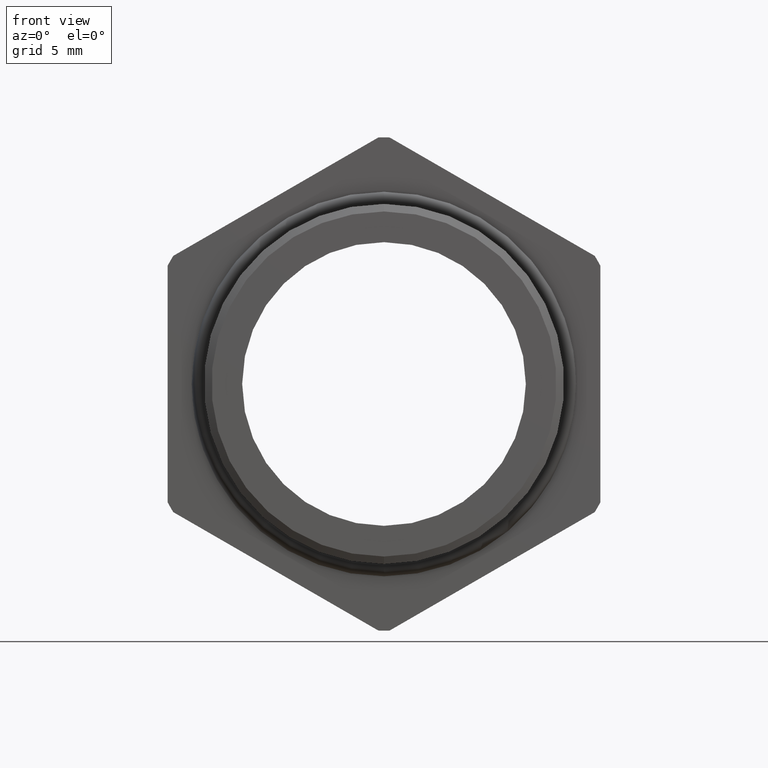
[diagram: clean part render]
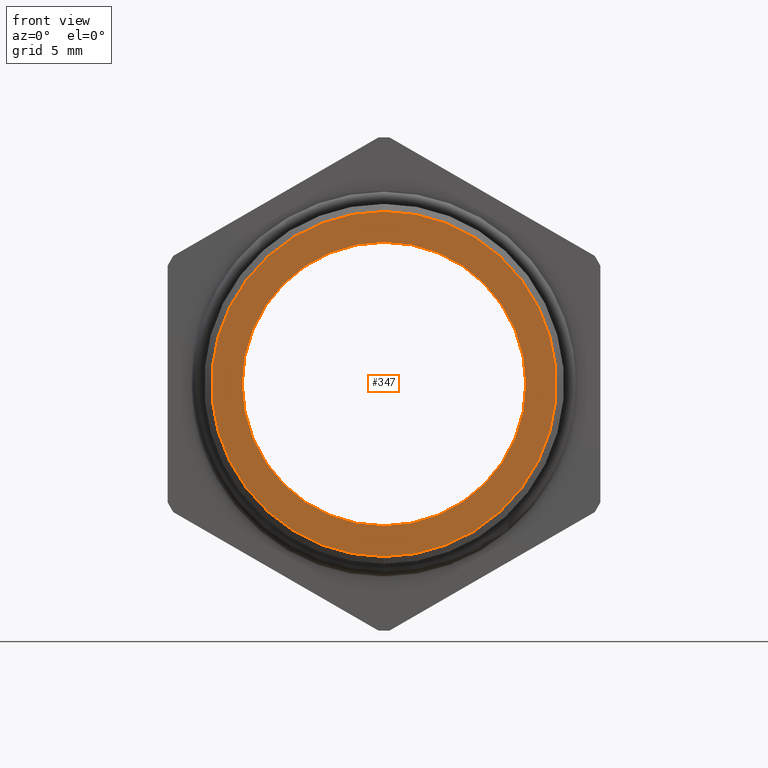
[diagram: same view with one face highlighted and labeled with its STEP entity id]
A machine part, front view. The second image highlights one B-rep face of the part: STEP entity #347.
In plain terms, the highlighted planar face has unit normal (0, -1, -0).
Its self-contained STEP definition (entity closure, byte-faithful):
#277 = ORIENTED_EDGE ( 'NONE', *, *, #8351, .F. ) ;
#347 = ADVANCED_FACE ( 'NONE', ( #2372, #2371 ), #2436, .T. ) ;
#348 = EDGE_LOOP ( 'NONE', ( #349, #351 ) ) ;
#349 = ORIENTED_EDGE ( 'NONE', *, *, #350, .F. ) ;
#350 = EDGE_CURVE ( 'NONE', #591, #673, #2430, .T. ) ;
#351 = ORIENTED_EDGE ( 'NONE', *, *, #675, .F. ) ;
#352 = EDGE_LOOP ( 'NONE', ( #353, #277 ) ) ;
#353 = ORIENTED_EDGE ( 'NONE', *, *, #354, .F. ) ;
#354 = EDGE_CURVE ( 'NONE', #8331, #8330, #2426, .T. ) ;
#591 = VERTEX_POINT ( 'NONE', #2846 ) ;
#673 = VERTEX_POINT ( 'NONE', #2999 ) ;
#675 = EDGE_CURVE ( 'NONE', #673, #591, #3061, .T. ) ;
#2371 = FACE_BOUND ( 'NONE', #352, .T. ) ;
#2372 = FACE_OUTER_BOUND ( 'NONE', #348, .T. ) ;
#2422 = DIRECTION ( 'NONE',  ( 0.0000000000000000000, 0.0000000000000000000, -1.000000000000000000 ) ) ;
#2423 = DIRECTION ( 'NONE',  ( -0.0000000000000000000, -1.000000000000000000, -0.0000000000000000000 ) ) ;
#2424 = CARTESIAN_POINT ( 'NONE',  ( 0.0000000000000000000, -0.1824451094170520000, 0.0000000000000000000 ) ) ;
#2425 = AXIS2_PLACEMENT_3D ( 'NONE', #2424, #2423, #2422 ) ;
#2426 = CIRCLE ( 'NONE', #2425, 0.2589880461203001900 ) ;
#2427 = DIRECTION ( 'NONE',  ( 0.0000000000000000000, 0.0000000000000000000, -1.000000000000000000 ) ) ;
#2428 = DIRECTION ( 'NONE',  ( 0.0000000000000000000, 1.000000000000000000, 0.0000000000000000000 ) ) ;
#2429 = AXIS2_PLACEMENT_3D ( 'NONE', #2434, #2428, #2427 ) ;
#2430 = CIRCLE ( 'NONE', #2429, 0.3150000000000000000 ) ;
#2431 = DIRECTION ( 'NONE',  ( 0.0000000000000000000, 0.0000000000000000000, -1.000000000000000000 ) ) ;
#2432 = DIRECTION ( 'NONE',  ( 0.0000000000000000000, -1.000000000000000000, -0.0000000000000000000 ) ) ;
#2433 = AXIS2_PLACEMENT_3D ( 'NONE', #2435, #2432, #2431 ) ;
#2434 = CARTESIAN_POINT ( 'NONE',  ( 0.0000000000000000000, -0.1824451094170520000, 0.0000000000000000000 ) ) ;
#2435 = CARTESIAN_POINT ( 'NONE',  ( 0.2589880461203001900, -0.1824451094170520000, 0.0000000000000000000 ) ) ;
#2436 = PLANE ( 'NONE',  #2433 ) ;
#2846 = CARTESIAN_POINT ( 'NONE',  ( 0.0000000000000000000, -0.1824451094170520000, 0.3150000000000000000 ) ) ;
#2999 = CARTESIAN_POINT ( 'NONE',  ( 3.857637417314162700E-017, -0.1824451094170520000, -0.3150000000000000000 ) ) ;
#3057 = DIRECTION ( 'NONE',  ( 0.0000000000000000000, 0.0000000000000000000, -1.000000000000000000 ) ) ;
#3058 = DIRECTION ( 'NONE',  ( 0.0000000000000000000, 1.000000000000000000, 0.0000000000000000000 ) ) ;
#3059 = CARTESIAN_POINT ( 'NONE',  ( 0.0000000000000000000, -0.1824451094170520000, 0.0000000000000000000 ) ) ;
#3060 = AXIS2_PLACEMENT_3D ( 'NONE', #3059, #3058, #3057 ) ;
#3061 = CIRCLE ( 'NONE', #3060, 0.3150000000000000000 ) ;
#6156 = CARTESIAN_POINT ( 'NONE',  ( 0.0000000000000000000, -0.1824451094170520000, -0.2589880461203001900 ) ) ;
#6157 = CARTESIAN_POINT ( 'NONE',  ( 3.171688816986526800E-017, -0.1824451094170520000, 0.2589880461203001900 ) ) ;
#6170 = DIRECTION ( 'NONE',  ( 0.0000000000000000000, 0.0000000000000000000, -1.000000000000000000 ) ) ;
#6171 = DIRECTION ( 'NONE',  ( -0.0000000000000000000, -1.000000000000000000, -0.0000000000000000000 ) ) ;
#6172 = CARTESIAN_POINT ( 'NONE',  ( 0.0000000000000000000, -0.1824451094170520000, 0.0000000000000000000 ) ) ;
#6173 = AXIS2_PLACEMENT_3D ( 'NONE', #6172, #6171, #6170 ) ;
#6174 = CIRCLE ( 'NONE', #6173, 0.2589880461203001900 ) ;
#8330 = VERTEX_POINT ( 'NONE', #6157 ) ;
#8331 = VERTEX_POINT ( 'NONE', #6156 ) ;
#8351 = EDGE_CURVE ( 'NONE', #8330, #8331, #6174, .T. ) ;